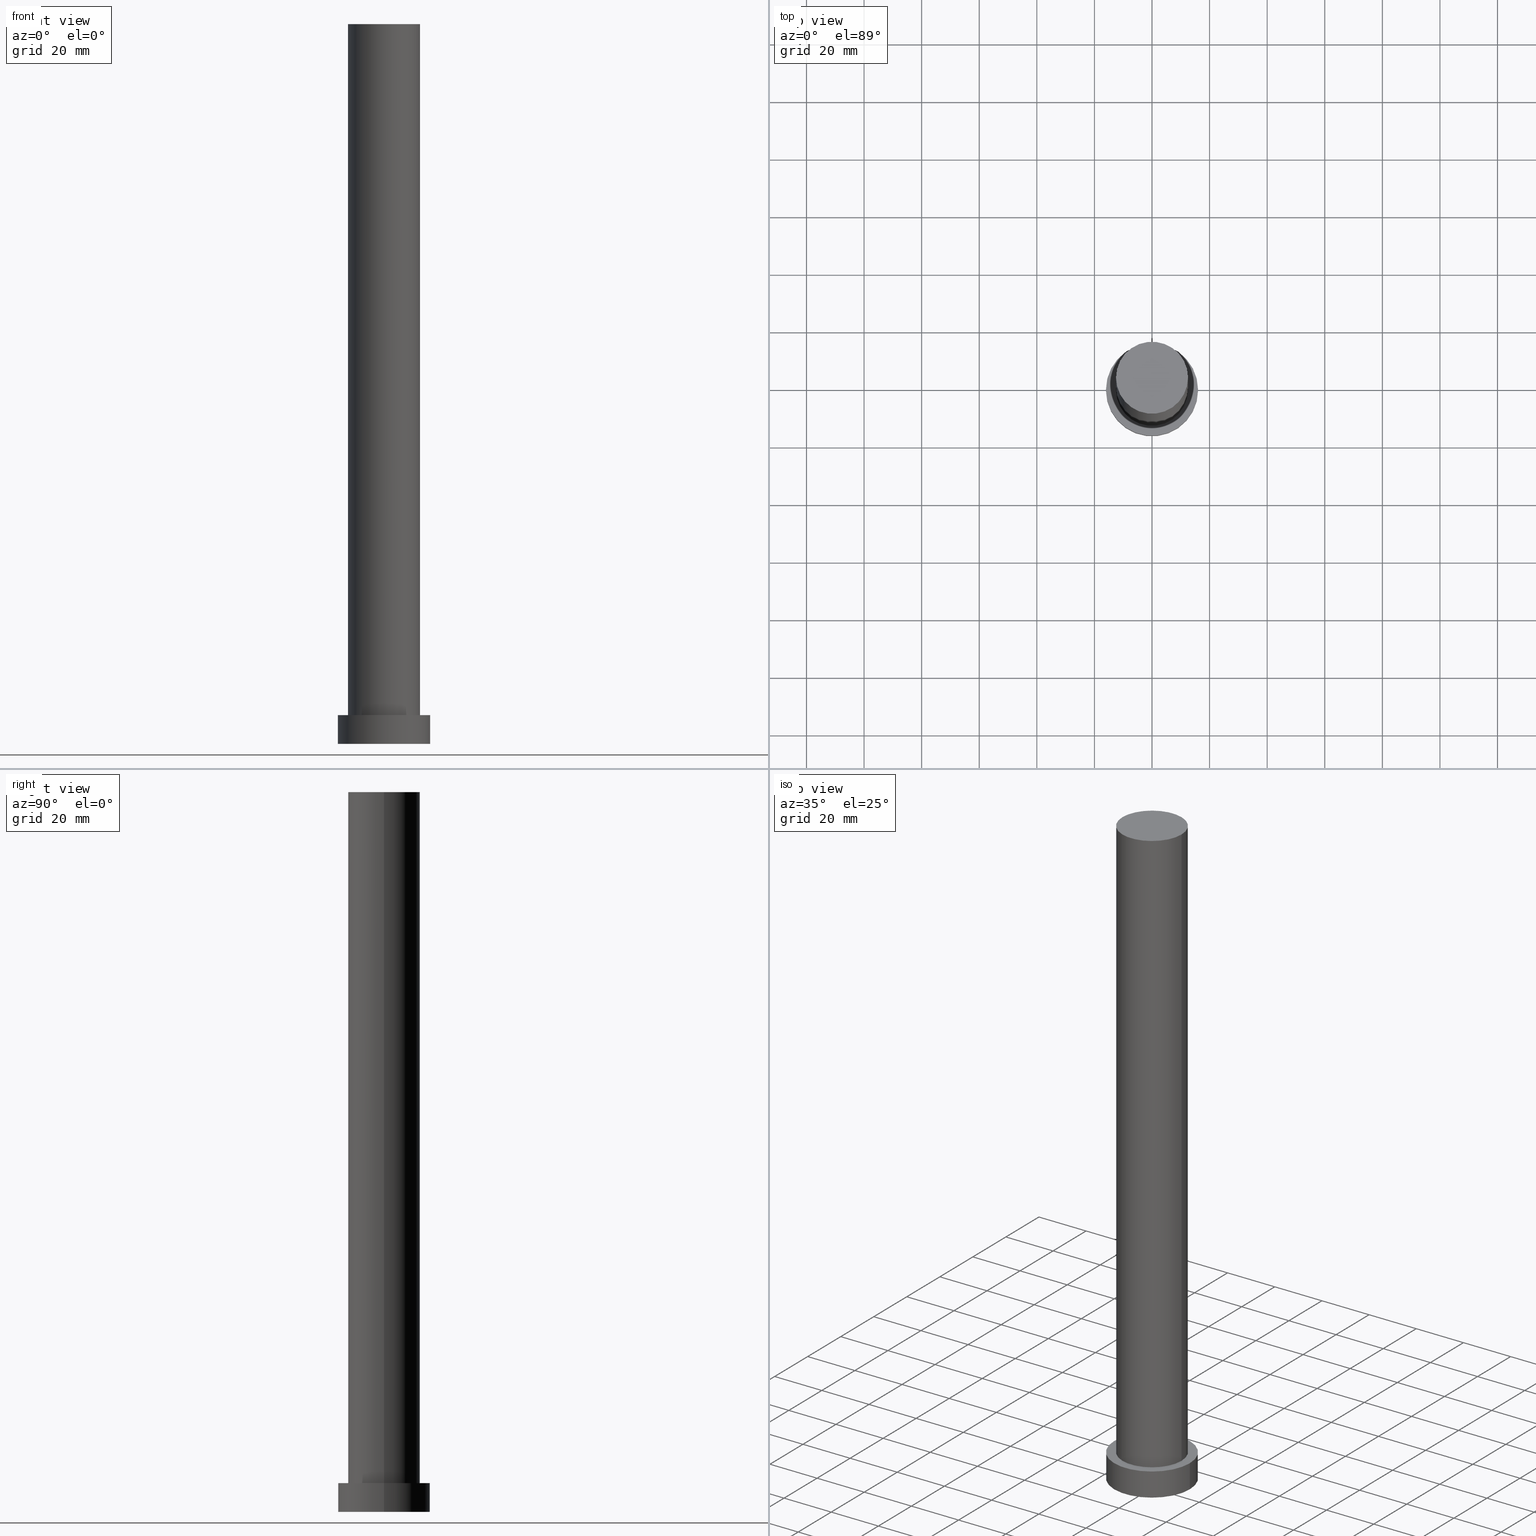
[diagram: canonical four-view strip — front | top / right | iso, engineering-drawing reading convention]
A machine part, canonical four-view strip (front | top / right | iso — engineering-drawing reading convention). The complete STEP part file that produces these views, byte-faithful:
ISO-10303-21;
HEADER;
FILE_DESCRIPTION (( 'STEP AP203' ),
    '1' );
FILE_NAME ('f6d8.STEP',
    '2023-02-13T07:47:50',
    ( '' ),
    ( '' ),
    'SwSTEP 2.0',
    'SolidWorks 2019',
    '' );
FILE_SCHEMA (( 'CONFIG_CONTROL_DESIGN' ));
ENDSEC;

DATA;
#1 = ORIENTED_EDGE ( 'NONE', *, *, #93, .F. ) ;
#2 = APPROVAL_STATUS ( 'not_yet_approved' ) ;
#3 = EDGE_CURVE ( 'NONE', #232, #156, #172, .T. ) ;
#4 = EDGE_LOOP ( 'NONE', ( #92, #133, #21, #216 ) ) ;
#5 = PERSON_AND_ORGANIZATION ( #212, #51 ) ;
#6 = DIRECTION ( 'NONE',  ( 1.000000000000000000, 0.000000000000000000, 0.000000000000000000 ) ) ;
#7 = CYLINDRICAL_SURFACE ( 'NONE', #42, 16.00000000000000000 ) ;
#8 = CC_DESIGN_APPROVAL ( #99, ( #73 ) ) ;
#9 = DIRECTION ( 'NONE',  ( 0.000000000000000000, 0.000000000000000000, 1.000000000000000000 ) ) ;
#10 = PLANE ( 'NONE',  #58 ) ;
#11 = FACE_BOUND ( 'NONE', #67, .T. ) ;
#12 = DIRECTION ( 'NONE',  ( -0.000000000000000000, -0.000000000000000000, -1.000000000000000000 ) ) ;
#13 = APPROVAL_DATE_TIME ( #103, #112 ) ;
#14 =( NAMED_UNIT ( * ) PLANE_ANGLE_UNIT ( ) SI_UNIT ( $, .RADIAN. ) );
#15 = AXIS2_PLACEMENT_3D ( 'NONE', #49, #123, #56 ) ;
#16 = DIRECTION ( 'NONE',  ( -0.000000000000000000, -0.000000000000000000, -1.000000000000000000 ) ) ;
#17 = EDGE_LOOP ( 'NONE', ( #155, #61, #197, #116 ) ) ;
#18 = APPLICATION_PROTOCOL_DEFINITION ( 'international standard', 'config_control_design', 1994, #131 ) ;
#19 = ORIENTED_EDGE ( 'NONE', *, *, #214, .T. ) ;
#20 = AXIS2_PLACEMENT_3D ( 'NONE', #86, #9, #124 ) ;
#21 = ORIENTED_EDGE ( 'NONE', *, *, #69, .T. ) ;
#22 = EDGE_LOOP ( 'NONE', ( #1, #80, #177, #19 ) ) ;
#23 = EDGE_CURVE ( 'NONE', #156, #232, #37, .T. ) ;
#24 = APPROVAL_DATE_TIME ( #198, #247 ) ;
#25 = ORIENTED_EDGE ( 'NONE', *, *, #23, .T. ) ;
#26 = LINE ( 'NONE', #76, #88 ) ;
#27 = APPROVAL_STATUS ( 'not_yet_approved' ) ;
#28 = DIRECTION ( 'NONE',  ( -1.000000000000000000, 0.000000000000000000, 0.000000000000000000 ) ) ;
#29 = DIRECTION ( 'NONE',  ( 0.000000000000000000, 0.000000000000000000, 1.000000000000000000 ) ) ;
#30 = COORDINATED_UNIVERSAL_TIME_OFFSET ( 1, 0, .AHEAD. ) ;
#31 = DIRECTION ( 'NONE',  ( 0.000000000000000000, 0.000000000000000000, 1.000000000000000000 ) ) ;
#32 = CARTESIAN_POINT ( 'NONE',  ( 16.00000000000000000, 1.959434878635765131E-15, 10.00000000000000000 ) ) ;
#33 = APPROVAL_PERSON_ORGANIZATION ( #5, #247, #240 ) ;
#34 = AXIS2_PLACEMENT_3D ( 'NONE', #188, #126, #6 ) ;
#35 = DIRECTION ( 'NONE',  ( 1.000000000000000000, 0.000000000000000000, 0.000000000000000000 ) ) ;
#36 = CC_DESIGN_PERSON_AND_ORGANIZATION_ASSIGNMENT ( #241, #63, ( #243 ) ) ;
#37 = CIRCLE ( 'NONE', #15, 16.00000000000000000 ) ;
#38 = ORIENTED_EDGE ( 'NONE', *, *, #105, .T. ) ;
#39 = VERTEX_POINT ( 'NONE', #146 ) ;
#40 = SECURITY_CLASSIFICATION ( '', '', #202 ) ;
#41 = VERTEX_POINT ( 'NONE', #72 ) ;
#42 = AXIS2_PLACEMENT_3D ( 'NONE', #162, #185, #190 ) ;
#43 = VECTOR ( 'NONE', #210, 1000.000000000000000 ) ;
#44 = APPROVAL_STATUS ( 'not_yet_approved' ) ;
#45 = CIRCLE ( 'NONE', #59, 12.50000000000000000 ) ;
#46 = FACE_OUTER_BOUND ( 'NONE', #193, .T. ) ;
#47 = DATE_TIME_ROLE ( 'classification_date' ) ;
#48 = DIRECTION ( 'NONE',  ( 0.000000000000000000, 0.000000000000000000, 1.000000000000000000 ) ) ;
#49 = CARTESIAN_POINT ( 'NONE',  ( 0.000000000000000000, 0.000000000000000000, 10.00000000000000000 ) ) ;
#50 = CYLINDRICAL_SURFACE ( 'NONE', #134, 12.50000000000000000 ) ;
#51 = ORGANIZATION ( 'NEUR�EN�', 'NEUR�EN�', '' ) ;
#52 = DIRECTION ( 'NONE',  ( 1.000000000000000000, 0.000000000000000000, -0.000000000000000000 ) ) ;
#53 = FACE_OUTER_BOUND ( 'NONE', #22, .T. ) ;
#54 = CARTESIAN_POINT ( 'NONE',  ( 16.00000000000000000, 1.959434878635765131E-15, 10.00000000000000000 ) ) ;
#55 = CARTESIAN_POINT ( 'NONE',  ( -16.00000000000000000, 0.000000000000000000, 10.00000000000000000 ) ) ;
#56 = DIRECTION ( 'NONE',  ( 1.000000000000000000, 0.000000000000000000, 0.000000000000000000 ) ) ;
#57 = CC_DESIGN_PERSON_AND_ORGANIZATION_ASSIGNMENT ( #236, #71, ( #40 ) ) ;
#58 = AXIS2_PLACEMENT_3D ( 'NONE', #89, #31, #144 ) ;
#59 = AXIS2_PLACEMENT_3D ( 'NONE', #87, #101, #91 ) ;
#60 = ADVANCED_BREP_SHAPE_REPRESENTATION ( 'f6d8', ( #223, #252 ), #220 ) ;
#61 = ORIENTED_EDGE ( 'NONE', *, *, #136, .T. ) ;
#62 = APPROVAL_DATE_TIME ( #181, #99 ) ;
#63 = PERSON_AND_ORGANIZATION_ROLE ( 'design_supplier' ) ;
#64 = CARTESIAN_POINT ( 'NONE',  ( 0.000000000000000000, 0.000000000000000000, 10.00000000000000000 ) ) ;
#65 = LOCAL_TIME ( 8, 47, 50.00000000000000000, #164 ) ;
#66 = CIRCLE ( 'NONE', #20, 16.00000000000000000 ) ;
#67 = EDGE_LOOP ( 'NONE', ( #118, #221 ) ) ;
#68 = CYLINDRICAL_SURFACE ( 'NONE', #111, 16.00000000000000000 ) ;
#69 = EDGE_CURVE ( 'NONE', #39, #77, #84, .T. ) ;
#70 = CARTESIAN_POINT ( 'NONE',  ( 0.000000000000000000, 0.000000000000000000, 0.000000000000000000 ) ) ;
#71 = PERSON_AND_ORGANIZATION_ROLE ( 'classification_officer' ) ;
#72 = CARTESIAN_POINT ( 'NONE',  ( 12.50000000000000000, 1.530808498934191521E-15, 10.00000000000000000 ) ) ;
#73 = PRODUCT_DEFINITION ( 'NEZN�M�', '', #243, #127 ) ;
#74 = CARTESIAN_POINT ( 'NONE',  ( -16.00000000000000000, 0.000000000000000000, 10.00000000000000000 ) ) ;
#75 = CARTESIAN_POINT ( 'NONE',  ( 0.000000000000000000, 0.000000000000000000, 0.000000000000000000 ) ) ;
#76 = CARTESIAN_POINT ( 'NONE',  ( -12.50000000000000000, 0.000000000000000000, 250.0000000000000000 ) ) ;
#77 = VERTEX_POINT ( 'NONE', #204 ) ;
#78 = ORIENTED_EDGE ( 'NONE', *, *, #207, .F. ) ;
#79 = VECTOR ( 'NONE', #147, 1000.000000000000000 ) ;
#80 = ORIENTED_EDGE ( 'NONE', *, *, #23, .F. ) ;
#81 = ORIENTED_EDGE ( 'NONE', *, *, #207, .T. ) ;
#82 = DATE_AND_TIME ( #114, #171 ) ;
#83 = LOCAL_TIME ( 8, 47, 50.00000000000000000, #159 ) ;
#84 = CIRCLE ( 'NONE', #201, 16.00000000000000000 ) ;
#85 = CARTESIAN_POINT ( 'NONE',  ( 0.000000000000000000, 0.000000000000000000, 250.0000000000000000 ) ) ;
#86 = CARTESIAN_POINT ( 'NONE',  ( 0.000000000000000000, 0.000000000000000000, 0.000000000000000000 ) ) ;
#87 = CARTESIAN_POINT ( 'NONE',  ( 0.000000000000000000, 0.000000000000000000, 10.00000000000000000 ) ) ;
#88 = VECTOR ( 'NONE', #12, 1000.000000000000000 ) ;
#89 = CARTESIAN_POINT ( 'NONE',  ( 0.000000000000000000, 0.000000000000000000, 250.0000000000000000 ) ) ;
#90 = DIRECTION ( 'NONE',  ( 1.000000000000000000, 0.000000000000000000, 0.000000000000000000 ) ) ;
#91 = DIRECTION ( 'NONE',  ( 1.000000000000000000, 0.000000000000000000, 0.000000000000000000 ) ) ;
#92 = ORIENTED_EDGE ( 'NONE', *, *, #3, .F. ) ;
#93 = EDGE_CURVE ( 'NONE', #232, #39, #108, .T. ) ;
#94 = VERTEX_POINT ( 'NONE', #169 ) ;
#95 = ORIENTED_EDGE ( 'NONE', *, *, #69, .F. ) ;
#96 = PERSON_AND_ORGANIZATION ( #212, #51 ) ;
#97 = CC_DESIGN_APPROVAL ( #112, ( #40 ) ) ;
#98 = CALENDAR_DATE ( 2023, 13, 2 ) ;
#99 = APPROVAL ( #2, 'NEUR�EN�' ) ;
#100 =( LENGTH_UNIT ( ) NAMED_UNIT ( * ) SI_UNIT ( .MILLI., .METRE. ) );
#101 = DIRECTION ( 'NONE',  ( 0.000000000000000000, 0.000000000000000000, 1.000000000000000000 ) ) ;
#102 = DIRECTION ( 'NONE',  ( 1.000000000000000000, 0.000000000000000000, 0.000000000000000000 ) ) ;
#103 = DATE_AND_TIME ( #148, #65 ) ;
#104 = DIRECTION ( 'NONE',  ( -0.000000000000000000, -0.000000000000000000, -1.000000000000000000 ) ) ;
#105 = EDGE_CURVE ( 'NONE', #94, #175, #26, .T. ) ;
#106 = DIRECTION ( 'NONE',  ( -0.000000000000000000, -0.000000000000000000, -1.000000000000000000 ) ) ;
#107 = DATE_AND_TIME ( #209, #213 ) ;
#108 = LINE ( 'NONE', #32, #79 ) ;
#109 = FACE_OUTER_BOUND ( 'NONE', #199, .T. ) ;
#110 = DIRECTION ( 'NONE',  ( 1.000000000000000000, 0.000000000000000000, -0.000000000000000000 ) ) ;
#111 = AXIS2_PLACEMENT_3D ( 'NONE', #206, #104, #28 ) ;
#112 = APPROVAL ( #27, 'NEUR�EN�' ) ;
#113 = AXIS2_PLACEMENT_3D ( 'NONE', #85, #242, #139 ) ;
#114 = CALENDAR_DATE ( 2023, 13, 2 ) ;
#115 = EDGE_CURVE ( 'NONE', #175, #41, #45, .T. ) ;
#116 = ORIENTED_EDGE ( 'NONE', *, *, #105, .F. ) ;
#117 = CALENDAR_DATE ( 2023, 13, 2 ) ;
#118 = ORIENTED_EDGE ( 'NONE', *, *, #115, .F. ) ;
#119 = ADVANCED_FACE ( 'NONE', ( #53 ), #68, .T. ) ;
#120 = CARTESIAN_POINT ( 'NONE',  ( 0.000000000000000000, 0.000000000000000000, 0.000000000000000000 ) ) ;
#121 = FACE_OUTER_BOUND ( 'NONE', #217, .T. ) ;
#122 = DIRECTION ( 'NONE',  ( 1.000000000000000000, 0.000000000000000000, 0.000000000000000000 ) ) ;
#123 = DIRECTION ( 'NONE',  ( 0.000000000000000000, 0.000000000000000000, 1.000000000000000000 ) ) ;
#124 = DIRECTION ( 'NONE',  ( 1.000000000000000000, 0.000000000000000000, 0.000000000000000000 ) ) ;
#125 = DIRECTION ( 'NONE',  ( 0.000000000000000000, 0.000000000000000000, 1.000000000000000000 ) ) ;
#126 = DIRECTION ( 'NONE',  ( 0.000000000000000000, 0.000000000000000000, 1.000000000000000000 ) ) ;
#127 = DESIGN_CONTEXT ( 'detailed design', #196, 'design' ) ;
#128 = FACE_OUTER_BOUND ( 'NONE', #4, .T. ) ;
#129 = CC_DESIGN_PERSON_AND_ORGANIZATION_ASSIGNMENT ( #132, #178, ( #165 ) ) ;
#130 = LOCAL_TIME ( 8, 47, 50.00000000000000000, #137 ) ;
#131 = APPLICATION_CONTEXT ( 'configuration controlled 3d designs of mechanical parts and assemblies' ) ;
#132 = PERSON_AND_ORGANIZATION ( #212, #51 ) ;
#133 = ORIENTED_EDGE ( 'NONE', *, *, #93, .T. ) ;
#134 = AXIS2_PLACEMENT_3D ( 'NONE', #249, #106, #248 ) ;
#135 = EDGE_CURVE ( 'NONE', #156, #77, #246, .T. ) ;
#136 = EDGE_CURVE ( 'NONE', #219, #41, #227, .T. ) ;
#137 = COORDINATED_UNIVERSAL_TIME_OFFSET ( 1, 0, .AHEAD. ) ;
#138 = PRODUCT_DEFINITION_SHAPE ( 'NONE', 'NONE',  #73 ) ;
#139 = DIRECTION ( 'NONE',  ( -1.000000000000000000, 0.000000000000000000, 0.000000000000000000 ) ) ;
#140 = APPROVAL_PERSON_ORGANIZATION ( #218, #99, #238 ) ;
#141 = CC_DESIGN_PERSON_AND_ORGANIZATION_ASSIGNMENT ( #160, #237, ( #243 ) ) ;
#142 = CARTESIAN_POINT ( 'NONE',  ( 0.000000000000000000, 0.000000000000000000, 10.00000000000000000 ) ) ;
#143 = PLANE ( 'NONE',  #151 ) ;
#144 = DIRECTION ( 'NONE',  ( 1.000000000000000000, 0.000000000000000000, -0.000000000000000000 ) ) ;
#145 = EDGE_CURVE ( 'NONE', #219, #94, #180, .T. ) ;
#146 = CARTESIAN_POINT ( 'NONE',  ( 16.00000000000000000, 1.959434878635765131E-15, 0.000000000000000000 ) ) ;
#147 = DIRECTION ( 'NONE',  ( -0.000000000000000000, -0.000000000000000000, -1.000000000000000000 ) ) ;
#148 = CALENDAR_DATE ( 2023, 13, 2 ) ;
#149 = EDGE_LOOP ( 'NONE', ( #254, #95 ) ) ;
#150 = APPROVAL_PERSON_ORGANIZATION ( #168, #112, #250 ) ;
#151 = AXIS2_PLACEMENT_3D ( 'NONE', #70, #211, #110 ) ;
#152 = CIRCLE ( 'NONE', #161, 12.50000000000000000 ) ;
#153 = AXIS2_PLACEMENT_3D ( 'NONE', #142, #205, #102 ) ;
#154 = ADVANCED_FACE ( 'NONE', ( #128 ), #7, .T. ) ;
#155 = ORIENTED_EDGE ( 'NONE', *, *, #145, .F. ) ;
#156 = VERTEX_POINT ( 'NONE', #74 ) ;
#157 = DATE_TIME_ROLE ( 'creation_date' ) ;
#158 = ADVANCED_FACE ( 'NONE', ( #208 ), #143, .F. ) ;
#159 = COORDINATED_UNIVERSAL_TIME_OFFSET ( 1, 0, .AHEAD. ) ;
#160 = PERSON_AND_ORGANIZATION ( #212, #51 ) ;
#161 = AXIS2_PLACEMENT_3D ( 'NONE', #64, #125, #90 ) ;
#162 = CARTESIAN_POINT ( 'NONE',  ( 0.000000000000000000, 0.000000000000000000, 10.00000000000000000 ) ) ;
#163 = CARTESIAN_POINT ( 'NONE',  ( 0.000000000000000000, 0.000000000000000000, 10.00000000000000000 ) ) ;
#164 = COORDINATED_UNIVERSAL_TIME_OFFSET ( 1, 0, .AHEAD. ) ;
#165 = PRODUCT ( 'f6d8', 'f6d8', '', ( #251 ) ) ;
#166 = CARTESIAN_POINT ( 'NONE',  ( -12.50000000000000000, 0.000000000000000000, 10.00000000000000000 ) ) ;
#167 = CLOSED_SHELL ( 'NONE', ( #191, #154, #119, #215, #158, #253, #186 ) ) ;
#168 = PERSON_AND_ORGANIZATION ( #212, #51 ) ;
#169 = CARTESIAN_POINT ( 'NONE',  ( -12.50000000000000000, 0.000000000000000000, 250.0000000000000000 ) ) ;
#170 = ORIENTED_EDGE ( 'NONE', *, *, #3, .T. ) ;
#171 = LOCAL_TIME ( 8, 47, 50.00000000000000000, #222 ) ;
#172 = CIRCLE ( 'NONE', #153, 16.00000000000000000 ) ;
#173 = CC_DESIGN_DATE_AND_TIME_ASSIGNMENT ( #82, #157, ( #73 ) ) ;
#174 = CC_DESIGN_APPROVAL ( #247, ( #243 ) ) ;
#175 = VERTEX_POINT ( 'NONE', #166 ) ;
#176 = PERSON_AND_ORGANIZATION_ROLE ( 'creator' ) ;
#177 = ORIENTED_EDGE ( 'NONE', *, *, #135, .T. ) ;
#178 = PERSON_AND_ORGANIZATION_ROLE ( 'design_owner' ) ;
#179 = ORIENTED_EDGE ( 'NONE', *, *, #115, .T. ) ;
#180 = CIRCLE ( 'NONE', #225, 12.50000000000000000 ) ;
#181 = DATE_AND_TIME ( #98, #83 ) ;
#182 = CARTESIAN_POINT ( 'NONE',  ( 0.000000000000000000, 0.000000000000000000, 250.0000000000000000 ) ) ;
#183 = SHAPE_DEFINITION_REPRESENTATION ( #138, #60 ) ;
#184 = AXIS2_PLACEMENT_3D ( 'NONE', #163, #229, #52 ) ;
#185 = DIRECTION ( 'NONE',  ( -0.000000000000000000, -0.000000000000000000, -1.000000000000000000 ) ) ;
#186 = ADVANCED_FACE ( 'NONE', ( #46 ), #10, .T. ) ;
#187 = DIRECTION ( 'NONE',  ( 1.000000000000000000, 0.000000000000000000, 0.000000000000000000 ) ) ;
#188 = CARTESIAN_POINT ( 'NONE',  ( 0.000000000000000000, 0.000000000000000000, 250.0000000000000000 ) ) ;
#189 = CYLINDRICAL_SURFACE ( 'NONE', #113, 12.50000000000000000 ) ;
#190 = DIRECTION ( 'NONE',  ( -1.000000000000000000, 0.000000000000000000, 0.000000000000000000 ) ) ;
#191 = ADVANCED_FACE ( 'NONE', ( #228 ), #50, .T. ) ;
#192 = DIRECTION ( 'NONE',  ( 0.000000000000000000, 0.000000000000000000, 1.000000000000000000 ) ) ;
#193 = EDGE_LOOP ( 'NONE', ( #81, #235 ) ) ;
#194 = ORIENTED_EDGE ( 'NONE', *, *, #136, .F. ) ;
#195 = VECTOR ( 'NONE', #16, 1000.000000000000000 ) ;
#196 = APPLICATION_CONTEXT ( 'configuration controlled 3d designs of mechanical parts and assemblies' ) ;
#197 = ORIENTED_EDGE ( 'NONE', *, *, #233, .T. ) ;
#198 = DATE_AND_TIME ( #117, #130 ) ;
#199 = EDGE_LOOP ( 'NONE', ( #194, #78, #38, #179 ) ) ;
#200 = APPLICATION_PROTOCOL_DEFINITION ( 'international standard', 'config_control_design', 1994, #196 ) ;
#201 = AXIS2_PLACEMENT_3D ( 'NONE', #120, #29, #187 ) ;
#202 = SECURITY_CLASSIFICATION_LEVEL ( 'unclassified' ) ;
#203 = CARTESIAN_POINT ( 'NONE',  ( 12.50000000000000000, 1.530808498934191521E-15, 250.0000000000000000 ) ) ;
#204 = CARTESIAN_POINT ( 'NONE',  ( -16.00000000000000000, 0.000000000000000000, 0.000000000000000000 ) ) ;
#205 = DIRECTION ( 'NONE',  ( 0.000000000000000000, 0.000000000000000000, 1.000000000000000000 ) ) ;
#206 = CARTESIAN_POINT ( 'NONE',  ( 0.000000000000000000, 0.000000000000000000, 10.00000000000000000 ) ) ;
#207 = EDGE_CURVE ( 'NONE', #94, #219, #245, .T. ) ;
#208 = FACE_OUTER_BOUND ( 'NONE', #149, .T. ) ;
#209 = CALENDAR_DATE ( 2023, 13, 2 ) ;
#210 = DIRECTION ( 'NONE',  ( -0.000000000000000000, -0.000000000000000000, -1.000000000000000000 ) ) ;
#211 = DIRECTION ( 'NONE',  ( 0.000000000000000000, 0.000000000000000000, 1.000000000000000000 ) ) ;
#212 = PERSON ( 'NEUR�EN�', 'NEUR�EN�', 'NEUR�EN�', ('NEUR�EN�'), ('NEUR�EN�'), ('NEUR�EN�') ) ;
#213 = LOCAL_TIME ( 8, 47, 50.00000000000000000, #30 ) ;
#214 = EDGE_CURVE ( 'NONE', #77, #39, #66, .T. ) ;
#215 = ADVANCED_FACE ( 'NONE', ( #11, #121 ), #244, .T. ) ;
#216 = ORIENTED_EDGE ( 'NONE', *, *, #135, .F. ) ;
#217 = EDGE_LOOP ( 'NONE', ( #25, #170 ) ) ;
#218 = PERSON_AND_ORGANIZATION ( #212, #51 ) ;
#219 = VERTEX_POINT ( 'NONE', #203 ) ;
#220 =( GEOMETRIC_REPRESENTATION_CONTEXT ( 3 ) GLOBAL_UNCERTAINTY_ASSIGNED_CONTEXT ( ( #230 ) ) GLOBAL_UNIT_ASSIGNED_CONTEXT ( ( #100, #14, #231 ) ) REPRESENTATION_CONTEXT ( 'NONE', 'WORKASPACE' ) );
#221 = ORIENTED_EDGE ( 'NONE', *, *, #233, .F. ) ;
#222 = COORDINATED_UNIVERSAL_TIME_OFFSET ( 1, 0, .AHEAD. ) ;
#223 = MANIFOLD_SOLID_BREP ( 'P�idat vysunut�m3', #167 ) ;
#224 = CC_DESIGN_PERSON_AND_ORGANIZATION_ASSIGNMENT ( #96, #176, ( #73 ) ) ;
#225 = AXIS2_PLACEMENT_3D ( 'NONE', #182, #48, #122 ) ;
#226 = CARTESIAN_POINT ( 'NONE',  ( 12.50000000000000000, 1.530808498934191521E-15, 250.0000000000000000 ) ) ;
#227 = LINE ( 'NONE', #226, #195 ) ;
#228 = FACE_OUTER_BOUND ( 'NONE', #17, .T. ) ;
#229 = DIRECTION ( 'NONE',  ( 0.000000000000000000, 0.000000000000000000, 1.000000000000000000 ) ) ;
#230 = UNCERTAINTY_MEASURE_WITH_UNIT (LENGTH_MEASURE( 1.000000000000000082E-05 ), #100, 'distance_accuracy_value', 'NONE');
#231 =( NAMED_UNIT ( * ) SI_UNIT ( $, .STERADIAN. ) SOLID_ANGLE_UNIT ( ) );
#232 = VERTEX_POINT ( 'NONE', #54 ) ;
#233 = EDGE_CURVE ( 'NONE', #41, #175, #152, .T. ) ;
#234 = PRODUCT_RELATED_PRODUCT_CATEGORY ( 'detail', '', ( #165 ) ) ;
#235 = ORIENTED_EDGE ( 'NONE', *, *, #145, .T. ) ;
#236 = PERSON_AND_ORGANIZATION ( #212, #51 ) ;
#237 = PERSON_AND_ORGANIZATION_ROLE ( 'creator' ) ;
#238 = APPROVAL_ROLE ( '' ) ;
#239 = CC_DESIGN_SECURITY_CLASSIFICATION ( #40, ( #243 ) ) ;
#240 = APPROVAL_ROLE ( '' ) ;
#241 = PERSON_AND_ORGANIZATION ( #212, #51 ) ;
#242 = DIRECTION ( 'NONE',  ( -0.000000000000000000, -0.000000000000000000, -1.000000000000000000 ) ) ;
#243 = PRODUCT_DEFINITION_FORMATION_WITH_SPECIFIED_SOURCE ( 'LIBOVOLN�', '', #165, .NOT_KNOWN. ) ;
#244 = PLANE ( 'NONE',  #184 ) ;
#245 = CIRCLE ( 'NONE', #34, 12.50000000000000000 ) ;
#246 = LINE ( 'NONE', #55, #43 ) ;
#247 = APPROVAL ( #44, 'NEUR�EN�' ) ;
#248 = DIRECTION ( 'NONE',  ( -1.000000000000000000, 0.000000000000000000, 0.000000000000000000 ) ) ;
#249 = CARTESIAN_POINT ( 'NONE',  ( 0.000000000000000000, 0.000000000000000000, 250.0000000000000000 ) ) ;
#250 = APPROVAL_ROLE ( '' ) ;
#251 = MECHANICAL_CONTEXT ( 'NONE', #131, 'mechanical' ) ;
#252 = AXIS2_PLACEMENT_3D ( 'NONE', #75, #192, #35 ) ;
#253 = ADVANCED_FACE ( 'NONE', ( #109 ), #189, .T. ) ;
#254 = ORIENTED_EDGE ( 'NONE', *, *, #214, .F. ) ;
#255 = CC_DESIGN_DATE_AND_TIME_ASSIGNMENT ( #107, #47, ( #40 ) ) ;
ENDSEC;
END-ISO-10303-21;
